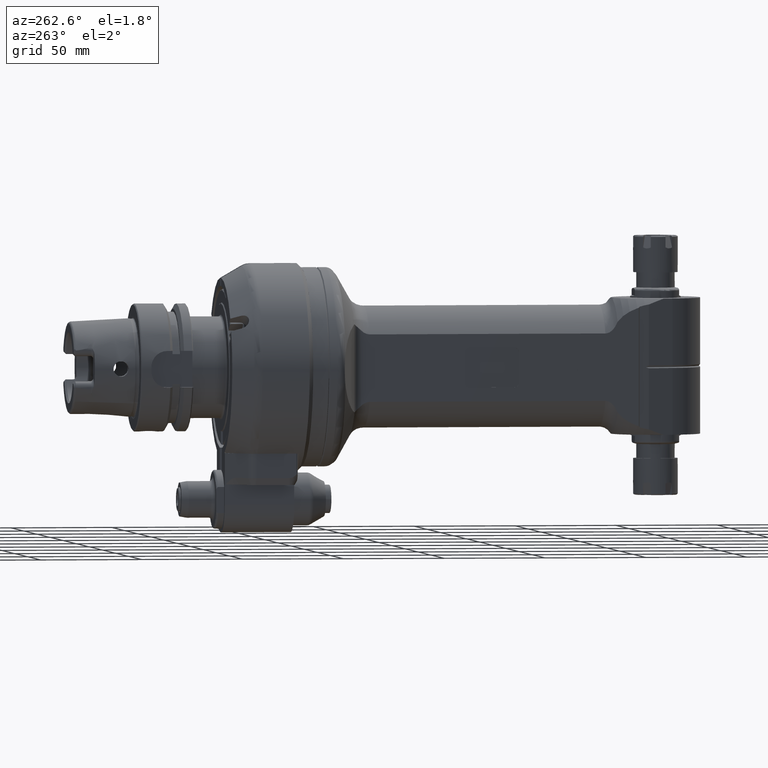
[diagram: clean part render]
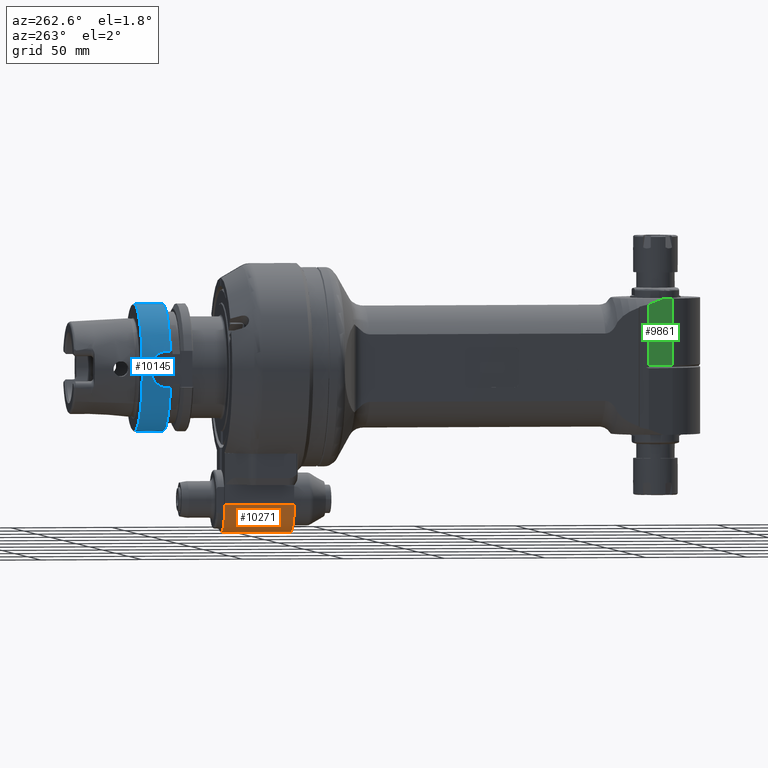
[diagram: same view with three faces highlighted in distinct colors, each labeled with its STEP entity id]
A machine part, auxiliary view with three faces highlighted in distinct colors.
Their STEP definitions:

[orange] entity #10271 — the highlighted cylindrical surface (edge-blend (fillet) strip) has radius 14 mm, axis along (0, -1, 0).
#1367=FACE_OUTER_BOUND('',#2018,.T.);
#2018=EDGE_LOOP('',(#9105,#9106,#9107,#9108));
#2770=LINE('',#18791,#3457);
#2771=LINE('',#18793,#3458);
#3457=VECTOR('',#13977,34.5);
#3458=VECTOR('',#13980,34.5);
#3957=CIRCLE('',#11334,14.);
#3968=CIRCLE('',#11354,14.);
#4859=VERTEX_POINT('',#18663);
#4860=VERTEX_POINT('',#18665);
#4889=VERTEX_POINT('',#18751);
#4890=VERTEX_POINT('',#18753);
#6273=EDGE_CURVE('',#4859,#4860,#3957,.T.);
#6314=EDGE_CURVE('',#4889,#4890,#3968,.T.);
#6334=EDGE_CURVE('',#4889,#4860,#2770,.T.);
#6335=EDGE_CURVE('',#4859,#4890,#2771,.T.);
#9105=ORIENTED_EDGE('',*,*,#6334,.T.);
#9106=ORIENTED_EDGE('',*,*,#6273,.F.);
#9107=ORIENTED_EDGE('',*,*,#6335,.T.);
#9108=ORIENTED_EDGE('',*,*,#6314,.F.);
#9767=CYLINDRICAL_SURFACE('',#11369,14.);
#10271=ADVANCED_FACE('',(#1367),#9767,.T.);
#11334=AXIS2_PLACEMENT_3D('',#18666,#13869,#13870);
#11354=AXIS2_PLACEMENT_3D('',#18754,#13935,#13936);
#11369=AXIS2_PLACEMENT_3D('',#18792,#13978,#13979);
#13869=DIRECTION('center_axis',(0.,-1.,0.));
#13870=DIRECTION('ref_axis',(-1.,0.,0.));
#13935=DIRECTION('center_axis',(0.,1.,0.));
#13936=DIRECTION('ref_axis',(0.,0.,-1.));
#13977=DIRECTION('',(0.,-1.,0.));
#13978=DIRECTION('center_axis',(0.,-1.,0.));
#13979=DIRECTION('ref_axis',(0.,0.,-1.));
#13980=DIRECTION('',(0.,1.,0.));
#18663=CARTESIAN_POINT('',(-15.,5.,-67.25));
#18665=CARTESIAN_POINT('',(-1.,5.,-81.25));
#18666=CARTESIAN_POINT('Origin',(-1.,5.,-67.25));
#18751=CARTESIAN_POINT('',(-1.,39.5,-81.25));
#18753=CARTESIAN_POINT('',(-15.,39.5,-67.25));
#18754=CARTESIAN_POINT('Origin',(-1.,39.5,-67.25));
#18791=CARTESIAN_POINT('',(-1.,39.5,-81.25));
#18792=CARTESIAN_POINT('Origin',(-1.,31.,-67.25));
#18793=CARTESIAN_POINT('',(-15.,5.,-67.25));

[blue] entity #10145 — the highlighted cylindrical surface (bore or boss wall) has radius 31.5 mm, axis along (0, 1, 0).
#282=B_SPLINE_CURVE_WITH_KNOTS('',3,(#17417,#17418,#17419,#17420,#17421,
#17422,#17423,#17424,#17425,#17426,#17427,#17428,#17429,#17430,#17431,#17432,
#17433,#17434),.UNSPECIFIED.,.F.,.F.,(4,2,2,2,2,2,2,2,4),(0.,0.302805879979317,
0.605611759958634,0.908372461246501,1.21113316253437,1.51389386382223,1.8166545651101,
2.11946044508942,2.42226632506873),.UNSPECIFIED.);
#284=B_SPLINE_CURVE_WITH_KNOTS('',3,(#17458,#17459,#17460,#17461,#17462,
#17463,#17464,#17465,#17466,#17467),.UNSPECIFIED.,.F.,.F.,(4,2,2,2,4),(-0.754746505200737,
-0.56606194688798,-0.377377388575223,-0.188688694287612,0.),
 .UNSPECIFIED.);
#285=B_SPLINE_CURVE_WITH_KNOTS('',3,(#17469,#17470,#17471,#17472,#17473,
#17474,#17475,#17476,#17477,#17478),.UNSPECIFIED.,.F.,.F.,(4,2,2,2,4),(0.,
0.188688694287612,0.377377388575223,0.56606194688798,0.754746505200737),
 .UNSPECIFIED.);
#286=B_SPLINE_CURVE_WITH_KNOTS('',3,(#17486,#17487,#17488,#17489,#17490,
#17491,#17492,#17493,#17494,#17495),.UNSPECIFIED.,.F.,.F.,(4,2,2,2,4),(1.20927420824098,
1.5131742975437,1.81707438684643,2.12000449915965,2.42293461147287),
 .UNSPECIFIED.);
#287=B_SPLINE_CURVE_WITH_KNOTS('',3,(#17499,#17500,#17501,#17502,#17503,
#17504,#17505,#17506,#17507,#17508),.UNSPECIFIED.,.F.,.F.,(4,2,2,2,4),(0.,
0.302930112313218,0.605860224626436,0.909760313929164,1.21366040323189),
 .UNSPECIFIED.);
#288=B_SPLINE_CURVE_WITH_KNOTS('',3,(#17516,#17517,#17518,#17519,#17520,
#17521,#17522,#17523,#17524,#17525,#17526,#17527),.UNSPECIFIED.,.F.,.F.,
(4,2,2,2,2,4),(-6.05874474967023,-5.78688497894,-5.51502520820976,-5.37221974243489,
-5.22941427666002,-5.09609706558246),.UNSPECIFIED.);
#289=B_SPLINE_CURVE_WITH_KNOTS('',3,(#17533,#17534,#17535,#17536,#17537,
#17538,#17539,#17540,#17541,#17542),.UNSPECIFIED.,.F.,.F.,(4,2,2,2,4),(0.754746505200737,
0.943431063513494,1.13211562182625,1.32080431611386,1.50949301040147),
 .UNSPECIFIED.);
#290=B_SPLINE_CURVE_WITH_KNOTS('',3,(#17543,#17544,#17545,#17546,#17547,
#17548,#17549,#17550,#17551,#17552),.UNSPECIFIED.,.F.,.F.,(4,2,2,2,4),(-1.50949301040147,
-1.32080431611386,-1.13211562182625,-0.943431063513494,-0.754746505200737),
 .UNSPECIFIED.);
#1241=FACE_OUTER_BOUND('',#1879,.T.);
#1879=EDGE_LOOP('',(#8406,#8407,#8408,#8409,#8410,#8411,#8412,#8413,#8414,
#8415,#8416,#8417,#8418,#8419,#8420,#8421,#8422,#8423,#8424,#8425,#8426,
#8427,#8428,#8429,#8430));
#2610=LINE('',#17414,#3297);
#2612=LINE('',#17438,#3299);
#2614=LINE('',#17456,#3301);
#2615=LINE('',#17480,#3302);
#2616=LINE('',#17484,#3303);
#2617=LINE('',#17510,#3304);
#2618=LINE('',#17514,#3305);
#2619=LINE('',#17529,#3306);
#3297=VECTOR('',#13297,1.62249829666703);
#3299=VECTOR('',#13303,1.62249829672203);
#3301=VECTOR('',#13309,31.5);
#3302=VECTOR('',#13310,31.5);
#3303=VECTOR('',#13313,1.62249751393706);
#3304=VECTOR('',#13316,1.62249751393706);
#3305=VECTOR('',#13319,10.);
#3306=VECTOR('',#13320,10.);
#3852=CIRCLE('',#11112,31.5);
#3853=CIRCLE('',#11113,31.5);
#3854=CIRCLE('',#11114,31.5);
#3855=CIRCLE('',#11115,31.5);
#3856=CIRCLE('',#11116,31.5);
#3857=CIRCLE('',#11117,31.5);
#3858=CIRCLE('',#11118,31.5);
#4660=VERTEX_POINT('',#17399);
#4662=VERTEX_POINT('',#17403);
#4663=VERTEX_POINT('',#17416);
#4664=VERTEX_POINT('',#17437);
#4666=VERTEX_POINT('',#17452);
#4667=VERTEX_POINT('',#17453);
#4668=VERTEX_POINT('',#17455);
#4669=VERTEX_POINT('',#17457);
#4670=VERTEX_POINT('',#17468);
#4671=VERTEX_POINT('',#17479);
#4672=VERTEX_POINT('',#17481);
#4673=VERTEX_POINT('',#17483);
#4674=VERTEX_POINT('',#17485);
#4675=VERTEX_POINT('',#17496);
#4676=VERTEX_POINT('',#17498);
#4677=VERTEX_POINT('',#17509);
#4678=VERTEX_POINT('',#17511);
#4679=VERTEX_POINT('',#17513);
#4680=VERTEX_POINT('',#17515);
#4681=VERTEX_POINT('',#17528);
#4682=VERTEX_POINT('',#17532);
#5973=EDGE_CURVE('',#4660,#4662,#2610,.T.);
#5974=EDGE_CURVE('',#4660,#4663,#282,.T.);
#5976=EDGE_CURVE('',#4664,#4663,#2612,.T.);
#5979=EDGE_CURVE('',#4666,#4667,#3852,.T.);
#5980=EDGE_CURVE('',#4666,#4668,#2614,.T.);
#5981=EDGE_CURVE('',#4668,#4669,#284,.T.);
#5982=EDGE_CURVE('',#4669,#4670,#285,.T.);
#5983=EDGE_CURVE('',#4670,#4671,#2615,.T.);
#5984=EDGE_CURVE('',#4672,#4671,#3853,.T.);
#5985=EDGE_CURVE('',#4672,#4673,#2616,.T.);
#5986=EDGE_CURVE('',#4674,#4673,#286,.T.);
#5987=EDGE_CURVE('',#4675,#4674,#3854,.T.);
#5988=EDGE_CURVE('',#4676,#4675,#287,.T.);
#5989=EDGE_CURVE('',#4676,#4677,#2617,.T.);
#5990=EDGE_CURVE('',#4678,#4677,#3855,.T.);
#5991=EDGE_CURVE('',#4678,#4679,#2618,.T.);
#5992=EDGE_CURVE('',#4680,#4679,#288,.T.);
#5993=EDGE_CURVE('',#4680,#4681,#2619,.T.);
#5994=EDGE_CURVE('',#4664,#4681,#3856,.T.);
#5995=EDGE_CURVE('',#4671,#4662,#3857,.T.);
#5996=EDGE_CURVE('',#4670,#4682,#289,.T.);
#5997=EDGE_CURVE('',#4682,#4668,#290,.T.);
#5998=EDGE_CURVE('',#4667,#4666,#3858,.T.);
#8406=ORIENTED_EDGE('',*,*,#5979,.F.);
#8407=ORIENTED_EDGE('',*,*,#5980,.T.);
#8408=ORIENTED_EDGE('',*,*,#5981,.T.);
#8409=ORIENTED_EDGE('',*,*,#5982,.T.);
#8410=ORIENTED_EDGE('',*,*,#5983,.T.);
#8411=ORIENTED_EDGE('',*,*,#5984,.F.);
#8412=ORIENTED_EDGE('',*,*,#5985,.T.);
#8413=ORIENTED_EDGE('',*,*,#5986,.F.);
#8414=ORIENTED_EDGE('',*,*,#5987,.F.);
#8415=ORIENTED_EDGE('',*,*,#5988,.F.);
#8416=ORIENTED_EDGE('',*,*,#5989,.T.);
#8417=ORIENTED_EDGE('',*,*,#5990,.F.);
#8418=ORIENTED_EDGE('',*,*,#5991,.T.);
#8419=ORIENTED_EDGE('',*,*,#5992,.F.);
#8420=ORIENTED_EDGE('',*,*,#5993,.T.);
#8421=ORIENTED_EDGE('',*,*,#5994,.F.);
#8422=ORIENTED_EDGE('',*,*,#5976,.T.);
#8423=ORIENTED_EDGE('',*,*,#5974,.F.);
#8424=ORIENTED_EDGE('',*,*,#5973,.T.);
#8425=ORIENTED_EDGE('',*,*,#5995,.F.);
#8426=ORIENTED_EDGE('',*,*,#5983,.F.);
#8427=ORIENTED_EDGE('',*,*,#5996,.T.);
#8428=ORIENTED_EDGE('',*,*,#5997,.T.);
#8429=ORIENTED_EDGE('',*,*,#5980,.F.);
#8430=ORIENTED_EDGE('',*,*,#5998,.F.);
#9733=CYLINDRICAL_SURFACE('',#11111,31.5);
#10145=ADVANCED_FACE('',(#1241),#9733,.T.);
#11111=AXIS2_PLACEMENT_3D('',#17451,#13305,#13306);
#11112=AXIS2_PLACEMENT_3D('',#17454,#13307,#13308);
#11113=AXIS2_PLACEMENT_3D('',#17482,#13311,#13312);
#11114=AXIS2_PLACEMENT_3D('',#17497,#13314,#13315);
#11115=AXIS2_PLACEMENT_3D('',#17512,#13317,#13318);
#11116=AXIS2_PLACEMENT_3D('',#17530,#13321,#13322);
#11117=AXIS2_PLACEMENT_3D('',#17531,#13323,#13324);
#11118=AXIS2_PLACEMENT_3D('',#17553,#13325,#13326);
#13297=DIRECTION('',(-4.68592609280692E-8,-0.999999999999983,-1.78458808967197E-7));
#13303=DIRECTION('',(4.68583040466692E-8,0.999999999999983,-1.78455147855797E-7));
#13305=DIRECTION('center_axis',(0.,1.,0.));
#13306=DIRECTION('ref_axis',(0.,0.,1.));
#13307=DIRECTION('center_axis',(0.,1.,0.));
#13308=DIRECTION('ref_axis',(-0.707106781186547,0.,-0.707106781186547));
#13309=DIRECTION('',(0.,-1.,0.));
#13310=DIRECTION('',(0.,-1.,0.));
#13311=DIRECTION('center_axis',(0.,-1.,0.));
#13312=DIRECTION('ref_axis',(-0.958314847499905,0.,-0.285714285714301));
#13313=DIRECTION('',(-7.77212104206971E-8,0.999999999999963,2.6068480881039E-7));
#13314=DIRECTION('center_axis',(0.,-1.,0.));
#13315=DIRECTION('ref_axis',(-0.999495967709915,0.,0.0317460317460305));
#13316=DIRECTION('',(7.77212082310371E-8,-0.999999999999963,2.6068480005169E-7));
#13317=DIRECTION('center_axis',(0.,-1.,0.));
#13318=DIRECTION('ref_axis',(0.634920634920608,0.,0.77257736658021));
#13319=DIRECTION('',(0.,1.,0.));
#13320=DIRECTION('',(0.,-1.,0.));
#13321=DIRECTION('center_axis',(0.,-1.,0.));
#13322=DIRECTION('ref_axis',(0.967212554703614,0.,0.253968253968304));
#13323=DIRECTION('center_axis',(0.,-1.,0.));
#13324=DIRECTION('ref_axis',(-0.958314847499905,0.,-0.285714285714301));
#13325=DIRECTION('center_axis',(0.,1.,0.));
#13326=DIRECTION('ref_axis',(-0.707106781186547,0.,-0.707106781186547));
#17399=CARTESIAN_POINT('',(30.46719547316,70.,-8.));
#17403=CARTESIAN_POINT('',(30.4671953763624,68.3774990892394,-8.00000043157662));
#17414=CARTESIAN_POINT('',(30.46719547316,70.,-8.));
#17416=CARTESIAN_POINT('',(30.46719547316,70.,8.));
#17417=CARTESIAN_POINT('Ctrl Pts',(30.4671954731643,70.,-8.));
#17418=CARTESIAN_POINT('Ctrl Pts',(30.4671954731643,71.0093529332644,-8.));
#17419=CARTESIAN_POINT('Ctrl Pts',(30.5225803085525,72.0827924069832,-7.79737202490167));
#17420=CARTESIAN_POINT('Ctrl Pts',(30.719895002943,74.052416006682,-6.97961067526075));
#17421=CARTESIAN_POINT('Ctrl Pts',(30.8586830127239,74.9490067762956,-6.36470172268915));
#17422=CARTESIAN_POINT('Ctrl Pts',(31.1170994373341,76.3645961117195,-4.94911238726522));
#17423=CARTESIAN_POINT('Ctrl Pts',(31.2539072689014,76.9795873698469,-4.05247770930662));
#17424=CARTESIAN_POINT('Ctrl Pts',(31.4466478906396,77.797408851126,-2.08269813865027));
#17425=CARTESIAN_POINT('Ctrl Pts',(31.5,78.,-1.00920233762622));
#17426=CARTESIAN_POINT('Ctrl Pts',(31.5,78.,1.00920233762622));
#17427=CARTESIAN_POINT('Ctrl Pts',(31.4466478906396,77.797408851126,2.08269813865026));
#17428=CARTESIAN_POINT('Ctrl Pts',(31.2539072689014,76.9795873698469,4.05247770930661));
#17429=CARTESIAN_POINT('Ctrl Pts',(31.1170994373341,76.3645961117195,4.94911238726522));
#17430=CARTESIAN_POINT('Ctrl Pts',(30.8586830127239,74.9490067762956,6.36470172268915));
#17431=CARTESIAN_POINT('Ctrl Pts',(30.719895002943,74.052416006682,6.97961067526075));
#17432=CARTESIAN_POINT('Ctrl Pts',(30.5225803085525,72.0827924069832,7.79737202490167));
#17433=CARTESIAN_POINT('Ctrl Pts',(30.4671954731643,71.0093529332644,8.));
#17434=CARTESIAN_POINT('Ctrl Pts',(30.4671954731643,70.,8.));
#17437=CARTESIAN_POINT('',(30.467195376368,68.37749908924,8.00000043156748));
#17438=CARTESIAN_POINT('',(30.46719539714,68.37750170328,8.000000289543));
#17451=CARTESIAN_POINT('Origin',(1.347113091385E-14,54.9,0.));
#17452=CARTESIAN_POINT('',(9.61349349653584E-15,82.5,-31.5));
#17453=CARTESIAN_POINT('',(9.61349349653584E-15,82.5,31.5));
#17454=CARTESIAN_POINT('Origin',(1.347113091385E-14,82.5,0.));
#17455=CARTESIAN_POINT('',(1.16762517131361E-14,81.,-31.5));
#17456=CARTESIAN_POINT('',(9.61349349653584E-15,54.9,-31.5));
#17457=CARTESIAN_POINT('',(-4.99999999999999,76.,-31.100643080168));
#17458=CARTESIAN_POINT('Ctrl Pts',(1.13797860024079E-14,81.,-31.5));
#17459=CARTESIAN_POINT('Ctrl Pts',(-0.628948527709179,81.,-31.5));
#17460=CARTESIAN_POINT('Ctrl Pts',(-1.29909839144707,80.8740869887941,-31.4792463697936));
#17461=CARTESIAN_POINT('Ctrl Pts',(-2.53068619255778,80.3634857465146,-31.4042391414288));
#17462=CARTESIAN_POINT('Ctrl Pts',(-3.09221190413347,79.978855907732,-31.3510329557602));
#17463=CARTESIAN_POINT('Ctrl Pts',(-3.9788656253722,79.0922021864933,-31.2508828501623));
#17464=CARTESIAN_POINT('Ctrl Pts',(-4.36348784122735,78.5306806569904,-31.1973810209855));
#17465=CARTESIAN_POINT('Ctrl Pts',(-4.87408354368812,77.299107184208,-31.1216953112949));
#17466=CARTESIAN_POINT('Ctrl Pts',(-4.99999999999999,76.628962314292,-31.100643080168));
#17467=CARTESIAN_POINT('Ctrl Pts',(-4.99999999999999,76.,-31.100643080168));
#17468=CARTESIAN_POINT('',(1.17456406521751E-14,71.,-31.5));
#17469=CARTESIAN_POINT('Ctrl Pts',(-4.99999999999999,76.,-31.100643080168));
#17470=CARTESIAN_POINT('Ctrl Pts',(-4.99999999999999,75.371037685708,-31.100643080168));
#17471=CARTESIAN_POINT('Ctrl Pts',(-4.87408354368812,74.700892815792,-31.1216953112949));
#17472=CARTESIAN_POINT('Ctrl Pts',(-4.36348784122735,73.4693193430096,-31.1973810209855));
#17473=CARTESIAN_POINT('Ctrl Pts',(-3.9788656253722,72.9077978135067,-31.2508828501623));
#17474=CARTESIAN_POINT('Ctrl Pts',(-3.09221190413347,72.021144092268,-31.3510329557602));
#17475=CARTESIAN_POINT('Ctrl Pts',(-2.53068619255778,71.6365142534854,-31.4042391414288));
#17476=CARTESIAN_POINT('Ctrl Pts',(-1.29909839144707,71.1259130112059,-31.4792463697936));
#17477=CARTESIAN_POINT('Ctrl Pts',(-0.628948527709176,71.,-31.5));
#17478=CARTESIAN_POINT('Ctrl Pts',(1.37390099297363E-14,71.,-31.5));
#17479=CARTESIAN_POINT('',(9.61349349653584E-15,68.37749907476,-31.5));
#17480=CARTESIAN_POINT('',(9.61349349653584E-15,54.9,-31.5));
#17481=CARTESIAN_POINT('',(-30.1869175352187,68.3774990975238,-9.00000062995455));
#17482=CARTESIAN_POINT('Origin',(1.347113091385E-14,68.37749907476,0.));
#17483=CARTESIAN_POINT('',(-30.18691769625,70.,-9.));
#17484=CARTESIAN_POINT('',(-30.18691757014,68.37750248606,-9.00000042296));
#17485=CARTESIAN_POINT('',(-31.48412298286,78.,-1.));
#17486=CARTESIAN_POINT('Ctrl Pts',(-31.4841229828623,78.,-1.));
#17487=CARTESIAN_POINT('Ctrl Pts',(-31.4519642432536,78.,-2.01248971281588));
#17488=CARTESIAN_POINT('Ctrl Pts',(-31.3640631381934,77.7962266693542,-3.08756640398172));
#17489=CARTESIAN_POINT('Ctrl Pts',(-31.1070804719497,76.9762989744496,-5.05836608044729));
#17490=CARTESIAN_POINT('Ctrl Pts',(-30.9405445582003,76.3604425465894,-5.95454409907419));
#17491=CARTESIAN_POINT('Ctrl Pts',(-30.6348764237341,74.9452750671682,-7.3671500962837));
#17492=CARTESIAN_POINT('Ctrl Pts',(-30.4752177477269,74.0503357784117,-7.98063403850822));
#17493=CARTESIAN_POINT('Ctrl Pts',(-30.2496070227108,72.0828259339463,-8.79719825889174));
#17494=CARTESIAN_POINT('Ctrl Pts',(-30.1869176962471,71.0097670410441,-9.));
#17495=CARTESIAN_POINT('Ctrl Pts',(-30.1869176962471,70.,-9.));
#17496=CARTESIAN_POINT('',(-31.48412298286,78.,1.));
#17497=CARTESIAN_POINT('Origin',(1.347113091385E-14,78.,0.));
#17498=CARTESIAN_POINT('',(-30.18691769625,70.,9.));
#17499=CARTESIAN_POINT('Ctrl Pts',(-30.1869176962471,70.,9.));
#17500=CARTESIAN_POINT('Ctrl Pts',(-30.1869176962471,71.0097670410441,9.));
#17501=CARTESIAN_POINT('Ctrl Pts',(-30.2496070227108,72.0828259339463,8.79719825889175));
#17502=CARTESIAN_POINT('Ctrl Pts',(-30.4752177477269,74.0503357784117,7.98063403850822));
#17503=CARTESIAN_POINT('Ctrl Pts',(-30.6348764237341,74.9452750671682,7.36715009628369));
#17504=CARTESIAN_POINT('Ctrl Pts',(-30.9405445582003,76.3604425465894,5.95454409907418));
#17505=CARTESIAN_POINT('Ctrl Pts',(-31.1070804719497,76.9762989744496,5.05836608044729));
#17506=CARTESIAN_POINT('Ctrl Pts',(-31.3640631381934,77.7962266693542,3.08756640398171));
#17507=CARTESIAN_POINT('Ctrl Pts',(-31.4519642432536,78.,2.01248971281587));
#17508=CARTESIAN_POINT('Ctrl Pts',(-31.4841229828623,78.,0.999999999999998));
#17509=CARTESIAN_POINT('',(-30.1869175352224,68.3774990975246,9.00000062995427));
#17510=CARTESIAN_POINT('',(-30.18691769625,70.,9.));
#17511=CARTESIAN_POINT('',(19.9999999996528,68.3774990752991,24.3361870480634));
#17512=CARTESIAN_POINT('Origin',(1.347113091385E-14,68.37749907476,0.));
#17513=CARTESIAN_POINT('',(20.,78.,24.33618704728));
#17514=CARTESIAN_POINT('',(20.,54.9,24.3361870472759));
#17515=CARTESIAN_POINT('',(24.33618704728,70.88828609634,20.));
#17516=CARTESIAN_POINT('Ctrl Pts',(24.3361870472759,70.88828609634,20.));
#17517=CARTESIAN_POINT('Ctrl Pts',(24.3361870472759,71.7944853321074,20.));
#17518=CARTESIAN_POINT('Ctrl Pts',(24.2030210294625,72.7485903152513,20.1651590264306));
#17519=CARTESIAN_POINT('Ctrl Pts',(23.6671236275841,74.4776040258777,20.791516259953));
#17520=CARTESIAN_POINT('Ctrl Pts',(23.2621247516531,75.2527099808559,21.2502254786035));
#17521=CARTESIAN_POINT('Ctrl Pts',(22.5572734459409,76.1838450530083,21.9896152318442));
#17522=CARTESIAN_POINT('Ctrl Pts',(22.2670351257637,76.5017410524538,22.2850045135992));
#17523=CARTESIAN_POINT('Ctrl Pts',(21.6380881931739,77.0626809031602,22.8961878826721));
#17524=CARTESIAN_POINT('Ctrl Pts',(21.2994440978138,77.3063698226692,23.211456037969));
#17525=CARTESIAN_POINT('Ctrl Pts',(20.6739705995174,77.6861703961873,23.7697454006925));
#17526=CARTESIAN_POINT('Ctrl Pts',(20.3466742532987,77.8532229798908,24.0512827172548));
#17527=CARTESIAN_POINT('Ctrl Pts',(19.9999999999973,77.999999999997,24.3361870472782));
#17528=CARTESIAN_POINT('',(24.3361870480639,68.3774990752995,19.9999999996526));
#17529=CARTESIAN_POINT('',(24.3361870472759,54.9,20.));
#17530=CARTESIAN_POINT('Origin',(1.347113091385E-14,68.37749907476,0.));
#17531=CARTESIAN_POINT('Origin',(1.347113091385E-14,68.37749907476,0.));
#17532=CARTESIAN_POINT('',(5.00000000000001,76.,-31.10064308017));
#17533=CARTESIAN_POINT('Ctrl Pts',(1.38083988687754E-14,71.,-31.5));
#17534=CARTESIAN_POINT('Ctrl Pts',(0.628948527709203,71.,-31.5));
#17535=CARTESIAN_POINT('Ctrl Pts',(1.2990983914471,71.1259130112059,-31.4792463697936));
#17536=CARTESIAN_POINT('Ctrl Pts',(2.53068619255781,71.6365142534854,-31.4042391414288));
#17537=CARTESIAN_POINT('Ctrl Pts',(3.0922119041335,72.021144092268,-31.3510329557602));
#17538=CARTESIAN_POINT('Ctrl Pts',(3.97886562537222,72.9077978135067,-31.2508828501623));
#17539=CARTESIAN_POINT('Ctrl Pts',(4.36348784122737,73.4693193430096,-31.1973810209855));
#17540=CARTESIAN_POINT('Ctrl Pts',(4.87408354368814,74.700892815792,-31.1216953112949));
#17541=CARTESIAN_POINT('Ctrl Pts',(5.00000000000001,75.371037685708,-31.100643080168));
#17542=CARTESIAN_POINT('Ctrl Pts',(5.00000000000001,76.,-31.100643080168));
#17543=CARTESIAN_POINT('Ctrl Pts',(5.00000000000001,76.,-31.100643080168));
#17544=CARTESIAN_POINT('Ctrl Pts',(5.00000000000001,76.628962314292,-31.100643080168));
#17545=CARTESIAN_POINT('Ctrl Pts',(4.87408354368815,77.299107184208,-31.1216953112949));
#17546=CARTESIAN_POINT('Ctrl Pts',(4.36348784122738,78.5306806569904,-31.1973810209855));
#17547=CARTESIAN_POINT('Ctrl Pts',(3.97886562537222,79.0922021864933,-31.2508828501623));
#17548=CARTESIAN_POINT('Ctrl Pts',(3.0922119041335,79.978855907732,-31.3510329557602));
#17549=CARTESIAN_POINT('Ctrl Pts',(2.53068619255781,80.3634857465146,-31.4042391414288));
#17550=CARTESIAN_POINT('Ctrl Pts',(1.2990983914471,80.8740869887941,-31.4792463697936));
#17551=CARTESIAN_POINT('Ctrl Pts',(0.628948527709203,81.,-31.5));
#17552=CARTESIAN_POINT('Ctrl Pts',(1.38777878078145E-14,81.,-31.5));
#17553=CARTESIAN_POINT('Origin',(1.347113091385E-14,82.5,0.));

[green] entity #9861 — the highlighted planar face has unit normal (0.9659, 0.2588, -0).
#409=(
BOUNDED_CURVE()
B_SPLINE_CURVE(2,(#15169,#15170,#15171),.UNSPECIFIED.,.F.,.F.)
B_SPLINE_CURVE_WITH_KNOTS((3,3),(0.608380908920315,0.668690733625114),
 .UNSPECIFIED.)
CURVE()
GEOMETRIC_REPRESENTATION_ITEM()
RATIONAL_B_SPLINE_CURVE((1.05761844635319,1.05761844635323,1.05705222463782))
REPRESENTATION_ITEM('')
);
#615=PLANE('',#10595);
#957=FACE_OUTER_BOUND('',#1562,.T.);
#1562=EDGE_LOOP('',(#6939,#6940,#6941,#6942,#6943,#6944));
#2171=ELLIPSE('',#10596,277.889209732586,61.2357652891682);
#2231=LINE('',#14949,#2918);
#2249=LINE('',#15151,#2936);
#2254=LINE('',#15174,#2941);
#2255=LINE('',#15176,#2942);
#2918=VECTOR('',#11750,10.);
#2936=VECTOR('',#11886,32.83431457505);
#2941=VECTOR('',#11915,11.9999999999998);
#2942=VECTOR('',#11916,10.);
#4144=VERTEX_POINT('',#14944);
#4145=VERTEX_POINT('',#14948);
#4186=VERTEX_POINT('',#15148);
#4187=VERTEX_POINT('',#15150);
#4190=VERTEX_POINT('',#15168);
#4191=VERTEX_POINT('',#15175);
#5177=EDGE_CURVE('',#4145,#4144,#2231,.T.);
#5243=EDGE_CURVE('',#4186,#4187,#2249,.T.);
#5252=EDGE_CURVE('',#4190,#4144,#409,.T.);
#5254=EDGE_CURVE('',#4190,#4187,#2254,.T.);
#5255=EDGE_CURVE('',#4191,#4186,#2255,.T.);
#5256=EDGE_CURVE('',#4191,#4145,#2171,.T.);
#6939=ORIENTED_EDGE('',*,*,#5177,.T.);
#6940=ORIENTED_EDGE('',*,*,#5252,.F.);
#6941=ORIENTED_EDGE('',*,*,#5254,.T.);
#6942=ORIENTED_EDGE('',*,*,#5243,.F.);
#6943=ORIENTED_EDGE('',*,*,#5255,.F.);
#6944=ORIENTED_EDGE('',*,*,#5256,.T.);
#9861=ADVANCED_FACE('',(#957),#615,.F.);
#10595=AXIS2_PLACEMENT_3D('',#15173,#11913,#11914);
#10596=AXIS2_PLACEMENT_3D('',#15177,#11917,#11918);
#11750=DIRECTION('',(0.,-1.,0.));
#11886=DIRECTION('',(0.,-1.,0.));
#11913=DIRECTION('center_axis',(-0.258819045102493,0.,-0.965925826289076));
#11914=DIRECTION('ref_axis',(-0.965925826289076,0.,0.258819045102493));
#11915=DIRECTION('',(0.965925824665113,-1.25489491020702E-8,-0.258819051163203));
#11916=DIRECTION('',(0.965925826289076,0.,-0.258819045102493));
#11917=DIRECTION('center_axis',(0.258819045102493,0.,0.965925826289076));
#11918=DIRECTION('ref_axis',(-0.965925826289076,9.58848046552246E-17,0.258819045102493));
#14944=CARTESIAN_POINT('',(173.566227923503,0.652829558118699,24.5000000005895));
#14948=CARTESIAN_POINT('',(173.566227928,30.71080615823,24.5));
#14949=CARTESIAN_POINT('',(173.566227927985,-16.7500000000001,24.5));
#15148=CARTESIAN_POINT('',(185.6940189923,33.5,21.25036817836));
#15150=CARTESIAN_POINT('',(185.6940189923,0.6656854249493,21.25036817836));
#15151=CARTESIAN_POINT('',(185.6940189923,33.5,21.25036817836));
#15168=CARTESIAN_POINT('',(174.102909084954,0.665685506700943,24.3561967500683));
#15169=CARTESIAN_POINT('Ctrl Pts',(174.102909076804,0.665685424951387,24.3561967195807));
#15170=CARTESIAN_POINT('Ctrl Pts',(173.834712162842,0.665685424952216,24.4280598660895));
#15171=CARTESIAN_POINT('Ctrl Pts',(173.566227923593,0.652829559505805,24.5000000011767));
#15173=CARTESIAN_POINT('Origin',(171.7002025242,-33.5,25.));
#15174=CARTESIAN_POINT('',(174.1029090963,0.6656855755367,24.35619679232));
#15175=CARTESIAN_POINT('',(181.097598665241,33.5000040656455,22.4819815240738));
#15176=CARTESIAN_POINT('',(168.646875066792,33.5,25.8181366264403));
#15177=CARTESIAN_POINT('Origin',(405.789439788772,0.,-37.7240220818525));